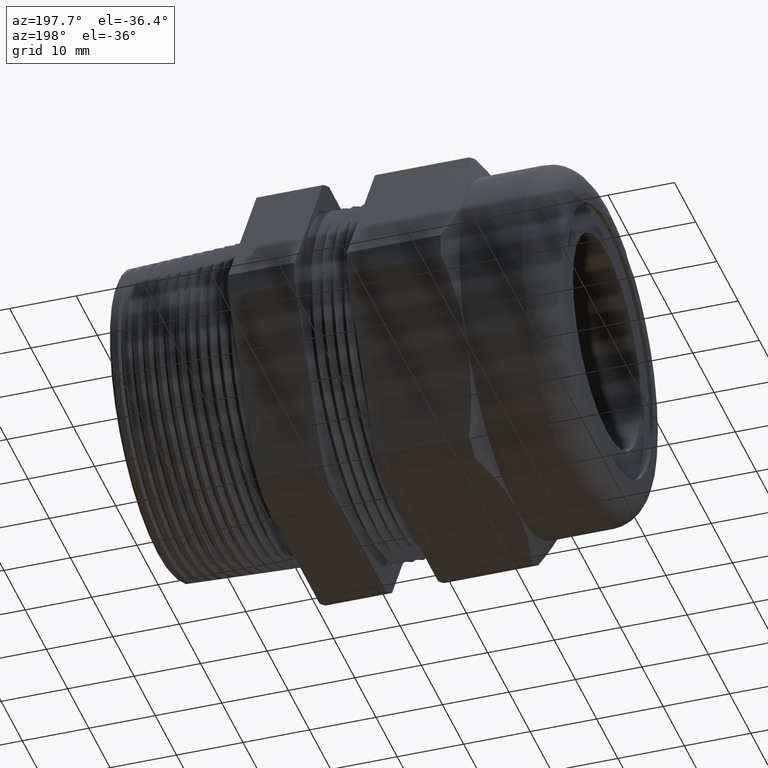
[diagram: clean part render]
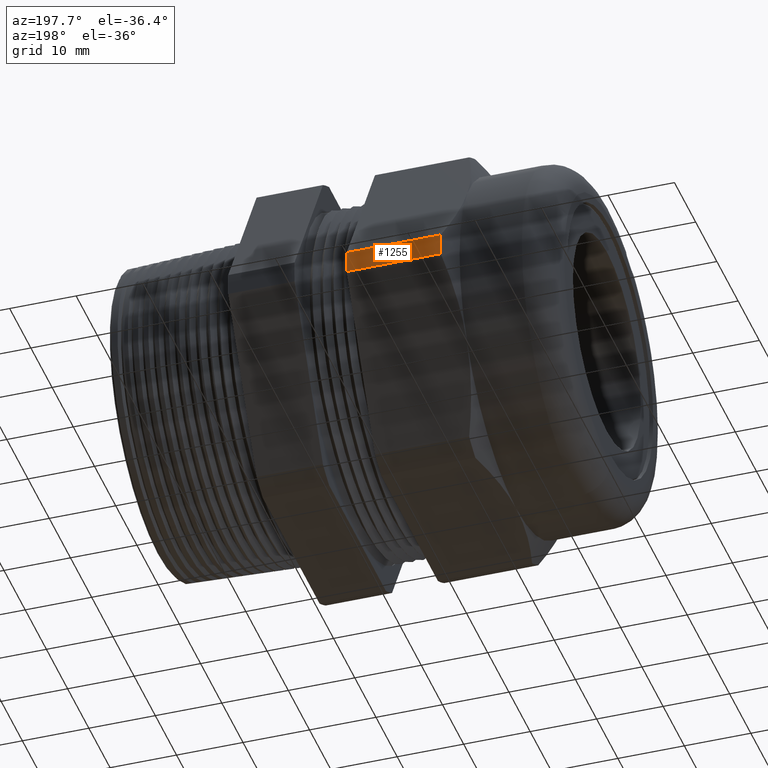
[diagram: same view with one face highlighted and labeled with its STEP entity id]
A machine part, auxiliary view. The second image highlights one B-rep face of the part: STEP entity #1255.
In plain terms, the highlighted cylindrical surface (partial cylindrical patch) has radius 29.7282 mm, axis along (-1, 0, 0).
Its self-contained STEP definition (entity closure, byte-faithful):
#1238 = EDGE_CURVE ( 'NONE', #1260, #1264, #3621, .T. ) ;
#1255 = ADVANCED_FACE ( 'NONE', ( #3648 ), #3647, .T. ) ;
#1256 = EDGE_LOOP ( 'NONE', ( #1257, #1261, #1319, #1321 ) ) ;
#1257 = ORIENTED_EDGE ( 'NONE', *, *, #1258, .F. ) ;
#1258 = EDGE_CURVE ( 'NONE', #1259, #1260, #3646, .T. ) ;
#1259 = VERTEX_POINT ( 'NONE', #3702 ) ;
#1260 = VERTEX_POINT ( 'NONE', #3701 ) ;
#1261 = ORIENTED_EDGE ( 'NONE', *, *, #1262, .T. ) ;
#1262 = EDGE_CURVE ( 'NONE', #1259, #1263, #3700, .T. ) ;
#1263 = VERTEX_POINT ( 'NONE', #3696 ) ;
#1264 = VERTEX_POINT ( 'NONE', #3695 ) ;
#1319 = ORIENTED_EDGE ( 'NONE', *, *, #1320, .T. ) ;
#1320 = EDGE_CURVE ( 'NONE', #1263, #1264, #3811, .T. ) ;
#1321 = ORIENTED_EDGE ( 'NONE', *, *, #1238, .F. ) ;
#3618 = DIRECTION ( 'NONE',  ( 1.000000000000000000, 0.0000000000000000000, 0.0000000000000000000 ) ) ;
#3619 = VECTOR ( 'NONE', #3618, 39.37007874015748100 ) ;
#3620 = CARTESIAN_POINT ( 'NONE',  ( -4.674745017870971100, 1.168535519404734900, -0.06603710994211037200 ) ) ;
#3621 = LINE ( 'NONE', #3620, #3619 ) ;
#3642 = DIRECTION ( 'NONE',  ( 0.0000000000000000000, 0.0000000000000000000, 1.000000000000000000 ) ) ;
#3643 = DIRECTION ( 'NONE',  ( -1.000000000000000000, 0.0000000000000000000, 0.0000000000000000000 ) ) ;
#3644 = CARTESIAN_POINT ( 'NONE',  ( -0.7238591030180623300, 0.0000000000000000000, 0.0000000000000000000 ) ) ;
#3645 = AXIS2_PLACEMENT_3D ( 'NONE', #3644, #3643, #3642 ) ;
#3646 = CIRCLE ( 'NONE', #3706, 1.170400000000000100 ) ;
#3647 = CYLINDRICAL_SURFACE ( 'NONE', #3645, 1.170400000000000100 ) ;
#3648 = FACE_OUTER_BOUND ( 'NONE', #1256, .T. ) ;
#3695 = CARTESIAN_POINT ( 'NONE',  ( -0.7012499999999994800, 1.168535519404734900, -0.06603710994211037200 ) ) ;
#3696 = CARTESIAN_POINT ( 'NONE',  ( -0.7012499999999994800, 1.168535519404734900, 0.06603710994211060800 ) ) ;
#3697 = DIRECTION ( 'NONE',  ( 1.000000000000000000, 0.0000000000000000000, 0.0000000000000000000 ) ) ;
#3698 = VECTOR ( 'NONE', #3697, 39.37007874015748100 ) ;
#3699 = CARTESIAN_POINT ( 'NONE',  ( -4.674745017870971100, 1.168535519404734900, 0.06603710994211060800 ) ) ;
#3700 = LINE ( 'NONE', #3699, #3698 ) ;
#3701 = CARTESIAN_POINT ( 'NONE',  ( -1.258850276243621300, 1.168535519404735100, -0.06603710994211040000 ) ) ;
#3702 = CARTESIAN_POINT ( 'NONE',  ( -1.258850276243621300, 1.168535519404734900, 0.06603710994211065000 ) ) ;
#3703 = DIRECTION ( 'NONE',  ( 0.0000000000000000000, 8.881784197001253900E-015, -1.000000000000000000 ) ) ;
#3704 = DIRECTION ( 'NONE',  ( -1.000000000000000000, 0.0000000000000000000, 0.0000000000000000000 ) ) ;
#3705 = CARTESIAN_POINT ( 'NONE',  ( -1.258850276243621300, 0.0000000000000000000, 0.0000000000000000000 ) ) ;
#3706 = AXIS2_PLACEMENT_3D ( 'NONE', #3705, #3704, #3703 ) ;
#3807 = DIRECTION ( 'NONE',  ( 0.0000000000000000000, 0.0000000000000000000, 1.000000000000000000 ) ) ;
#3808 = DIRECTION ( 'NONE',  ( -1.000000000000000000, 0.0000000000000000000, 0.0000000000000000000 ) ) ;
#3809 = CARTESIAN_POINT ( 'NONE',  ( -0.7012499999999998200, 0.0000000000000000000, 0.0000000000000000000 ) ) ;
#3810 = AXIS2_PLACEMENT_3D ( 'NONE', #3809, #3808, #3807 ) ;
#3811 = CIRCLE ( 'NONE', #3810, 1.170400000000000100 ) ;